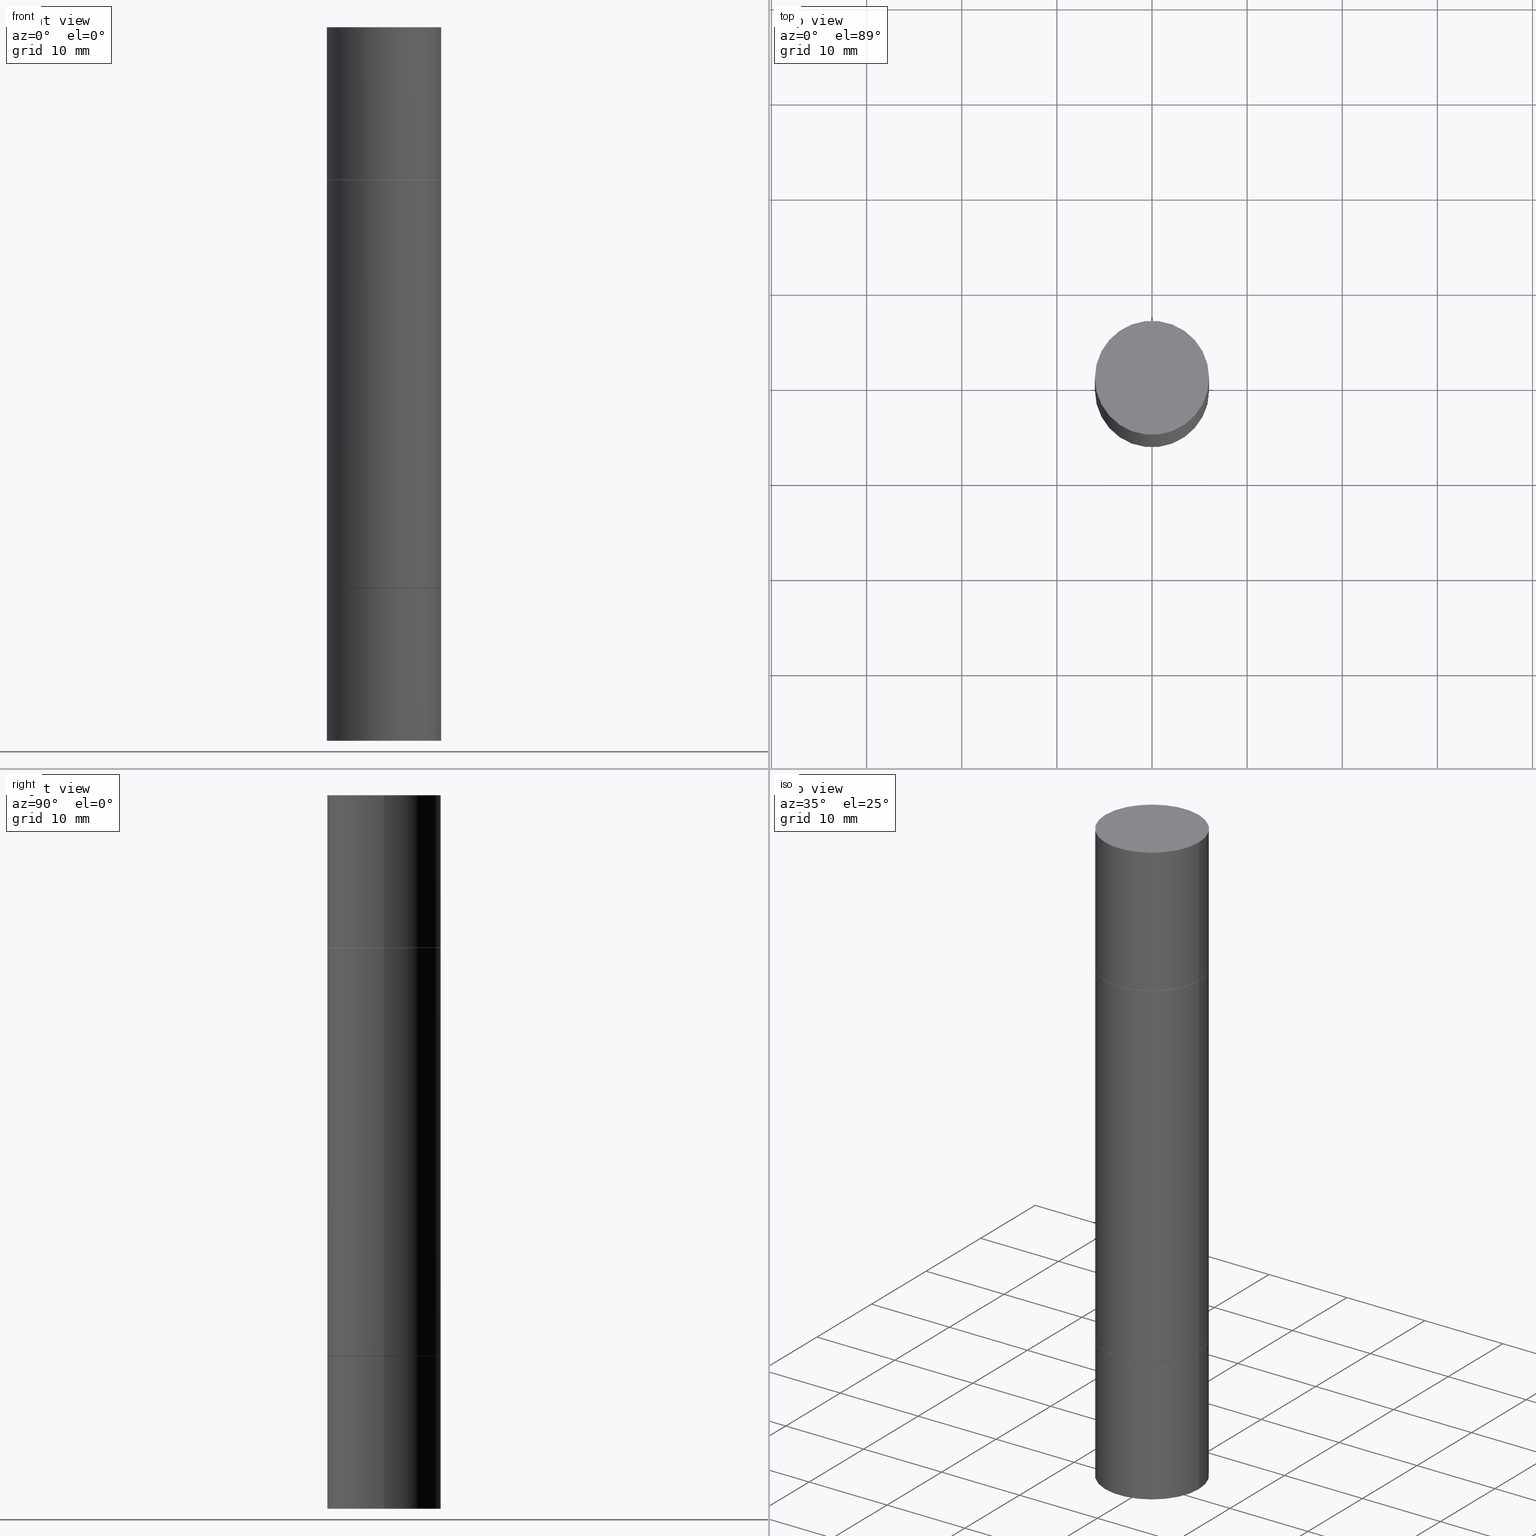
[diagram: canonical four-view strip — front | top / right | iso, engineering-drawing reading convention]
A machine part, canonical four-view strip (front | top / right | iso — engineering-drawing reading convention). The complete STEP part file that produces these views, byte-faithful:
ISO-10303-21;
HEADER;
FILE_DESCRIPTION (( 'STEP AP203' ),
    '1' );
FILE_NAME ('48941.STEP',
    '2024-03-04T15:50:07',
    ( '' ),
    ( '' ),
    'SwSTEP 2.0',
    'SolidWorks 2023',
    '' );
FILE_SCHEMA (( 'CONFIG_CONTROL_DESIGN' ));
ENDSEC;

DATA;
#1 = ORIENTED_EDGE ( 'NONE', *, *, #467, .F. ) ;
#2 = AXIS2_PLACEMENT_3D ( 'NONE', #67, #650, #25 ) ;
#3 = CIRCLE ( 'NONE', #44, 0.2361999999999999933 ) ;
#4 = DATE_AND_TIME ( #521, #623 ) ;
#5 = CARTESIAN_POINT ( 'NONE',  ( 0.000000000000000000, -1.031172645228302408E-14, -2.952799999999998981 ) ) ;
#6 = VERTEX_POINT ( 'NONE', #495 ) ;
#7 = APPLICATION_PROTOCOL_DEFINITION ( 'international standard', 'config_control_design', 1994, #184 ) ;
#8 = DIRECTION ( 'NONE',  ( 1.000000000000000000, -6.982962677686265133E-15, 0.000000000000000000 ) ) ;
#9 = CARTESIAN_POINT ( 'NONE',  ( 0.000000000000000000, -1.031172645228302408E-14, -2.952799999999998981 ) ) ;
#10 = AXIS2_PLACEMENT_3D ( 'NONE', #135, #549, #554 ) ;
#11 = DATE_AND_TIME ( #259, #645 ) ;
#12 = DIRECTION ( 'NONE',  ( 1.000000000000000000, -6.982962677686265922E-15, 4.876176775795935793E-29 ) ) ;
#13 = EDGE_CURVE ( 'NONE', #327, #29, #562, .T. ) ;
#14 = EDGE_CURVE ( 'NONE', #663, #100, #432, .T. ) ;
#15 = LINE ( 'NONE', #216, #384 ) ;
#16 = FACE_OUTER_BOUND ( 'NONE', #257, .T. ) ;
#17 = DIRECTION ( 'NONE',  ( 2.438088387897959769E-29, 3.492890411551753071E-15, 1.000000000000000000 ) ) ;
#18 = CARTESIAN_POINT ( 'NONE',  ( -0.2361999999999999933, -8.691276825209387423E-15, -2.952799999999998981 ) ) ;
#19 = DIRECTION ( 'NONE',  ( 2.445468806185136597E-29, 3.492890411551752677E-15, 1.000000000000000000 ) ) ;
#20 = CC_DESIGN_APPROVAL ( #672, ( #71 ) ) ;
#21 = LOCAL_TIME ( 10, 50, 7.000000000000000000, #635 ) ;
#22 = DIRECTION ( 'NONE',  ( 1.000000000000000000, -6.982962677686265922E-15, 9.839502134516470631E-33 ) ) ;
#23 = FACE_OUTER_BOUND ( 'NONE', #461, .T. ) ;
#24 = ADVANCED_FACE ( 'NONE', ( #392 ), #435, .T. ) ;
#25 = DIRECTION ( 'NONE',  ( 1.000000000000000000, -6.982962677686266711E-15, 0.000000000000000000 ) ) ;
#26 = VERTEX_POINT ( 'NONE', #179 ) ;
#27 = CARTESIAN_POINT ( 'NONE',  ( 0.000000000000000000, 0.000000000000000000, 0.000000000000000000 ) ) ;
#28 = ORIENTED_EDGE ( 'NONE', *, *, #505, .T. ) ;
#29 = VERTEX_POINT ( 'NONE', #547 ) ;
#30 = DIRECTION ( 'NONE',  ( -0.7071067811865232589, 2.381258160591016070E-15, -0.7071067811865715536 ) ) ;
#31 = AXIS2_PLACEMENT_3D ( 'NONE', #578, #59, #8 ) ;
#32 = CARTESIAN_POINT ( 'NONE',  ( 3.610490145451734531E-29, -5.154823048668018475E-15, -1.476399999999999491 ) ) ;
#33 = ORIENTED_EDGE ( 'NONE', *, *, #176, .F. ) ;
#34 = EDGE_CURVE ( 'NONE', #26, #337, #43, .T. ) ;
#35 = CARTESIAN_POINT ( 'NONE',  ( -0.2351999999999999924, -6.439165487490986171E-15, -2.322899999999999743 ) ) ;
#36 = FACE_OUTER_BOUND ( 'NONE', #390, .T. ) ;
#37 = ORIENTED_EDGE ( 'NONE', *, *, #81, .F. ) ;
#38 = MECHANICAL_CONTEXT ( 'NONE', #367, 'mechanical' ) ;
#39 = DIRECTION ( 'NONE',  ( 1.000000000000000000, -6.982962677686266711E-15, 0.000000000000000000 ) ) ;
#40 = ORIENTED_EDGE ( 'NONE', *, *, #328, .T. ) ;
#41 =( LENGTH_UNIT ( ) NAMED_UNIT ( * ) SI_UNIT ( $, .METRE. ) );
#42 = DIRECTION ( 'NONE',  ( -1.000000000000000000, 6.982962677686265922E-15, -4.876176775795935793E-29 ) ) ;
#43 = CIRCLE ( 'NONE', #530, 0.2361999999999999933 ) ;
#44 = AXIS2_PLACEMENT_3D ( 'NONE', #326, #529, #481 ) ;
#45 = ORIENTED_EDGE ( 'NONE', *, *, #266, .F. ) ;
#46 = DIRECTION ( 'NONE',  ( -2.445468806185136877E-29, -3.492890411551753071E-15, -1.000000000000000000 ) ) ;
#47 = ADVANCED_FACE ( 'NONE', ( #537 ), #293, .T. ) ;
#48 = ORIENTED_EDGE ( 'NONE', *, *, #501, .T. ) ;
#49 = DIRECTION ( 'NONE',  ( -2.445468806185136597E-29, -3.492890411551752677E-15, -1.000000000000000000 ) ) ;
#50 = EDGE_LOOP ( 'NONE', ( #507, #162, #611, #669 ) ) ;
#51 = PERSON_AND_ORGANIZATION_ROLE ( 'creator' ) ;
#52 = CARTESIAN_POINT ( 'NONE',  ( 5.680579489887452821E-29, -2.198091315289460230E-15, -0.6298999999999994603 ) ) ;
#53 = ORIENTED_EDGE ( 'NONE', *, *, #648, .F. ) ;
#54 = CIRCLE ( 'NONE', #622, 0.2351999999999999924 ) ;
#55 = ADVANCED_FACE ( 'NONE', ( #442 ), #220, .T. ) ;
#56 = SHAPE_DEFINITION_REPRESENTATION ( #92, #203 ) ;
#57 = LINE ( 'NONE', #638, #468 ) ;
#58 = CALENDAR_DATE ( 2024, 4, 3 ) ;
#59 = DIRECTION ( 'NONE',  ( -2.445468806185136597E-29, -3.492890411551752677E-15, -1.000000000000000000 ) ) ;
#60 = CALENDAR_DATE ( 2024, 4, 3 ) ;
#61 = DIRECTION ( 'NONE',  ( 1.000000000000000000, -6.982962677686265133E-15, 0.000000000000000000 ) ) ;
#62 = CONICAL_SURFACE ( 'NONE', #577, 0.2351999999999999924, 0.7853981633974141952 ) ;
#63 = CARTESIAN_POINT ( 'NONE',  ( 0.000000000000000000, -1.031172645228302408E-14, -2.952799999999998981 ) ) ;
#64 = EDGE_LOOP ( 'NONE', ( #76, #583, #294, #83 ) ) ;
#65 = ADVANCED_FACE ( 'NONE', ( #16 ), #492, .F. ) ;
#66 = DIRECTION ( 'NONE',  ( 1.000000000000000000, -6.982962677686266711E-15, 0.000000000000000000 ) ) ;
#67 = CARTESIAN_POINT ( 'NONE',  ( 7.220980290903470182E-29, 2.080354946989631982E-18, 5.463695987328526437E-16 ) ) ;
#68 = DIRECTION ( 'NONE',  ( -2.445468806185136877E-29, -3.492890411551753071E-15, -1.000000000000000000 ) ) ;
#69 = CARTESIAN_POINT ( 'NONE',  ( 0.000000000000000000, -1.031172645228302408E-14, -2.952799999999998981 ) ) ;
#70 = AXIS2_PLACEMENT_3D ( 'NONE', #478, #271, #426 ) ;
#71 = PRODUCT_DEFINITION ( 'UNKNOWN', '', #284, #660 ) ;
#72 = FACE_OUTER_BOUND ( 'NONE', #414, .T. ) ;
#73 = CARTESIAN_POINT ( 'NONE',  ( 7.220980290903470182E-29, -1.030964609733603853E-14, -2.952799999999999869 ) ) ;
#74 = EDGE_LOOP ( 'NONE', ( #423, #45, #152, #316 ) ) ;
#75 = DIRECTION ( 'NONE',  ( 2.445468806185136597E-29, 3.492890411551752677E-15, 1.000000000000000000 ) ) ;
#76 = ORIENTED_EDGE ( 'NONE', *, *, #608, .T. ) ;
#77 = EDGE_CURVE ( 'NONE', #344, #558, #249, .T. ) ;
#78 = ORIENTED_EDGE ( 'NONE', *, *, #14, .T. ) ;
#79 = LINE ( 'NONE', #195, #136 ) ;
#80 = DIRECTION ( 'NONE',  ( -2.445468806185136597E-29, -3.492890411551752677E-15, -1.000000000000000000 ) ) ;
#81 = EDGE_CURVE ( 'NONE', #6, #630, #164, .T. ) ;
#82 = EDGE_CURVE ( 'NONE', #231, #137, #551, .T. ) ;
#83 = ORIENTED_EDGE ( 'NONE', *, *, #599, .F. ) ;
#84 = AXIS2_PLACEMENT_3D ( 'NONE', #463, #679, #156 ) ;
#85 = CARTESIAN_POINT ( 'NONE',  ( 0.2361999999999998545, -5.327579411654007610E-15, -1.476399999999999491 ) ) ;
#86 = AXIS2_PLACEMENT_3D ( 'NONE', #456, #459, #248 ) ;
#87 = ORIENTED_EDGE ( 'NONE', *, *, #505, .F. ) ;
#88 = ORIENTED_EDGE ( 'NONE', *, *, #528, .T. ) ;
#89 = EDGE_CURVE ( 'NONE', #358, #6, #205, .T. ) ;
#90 = CARTESIAN_POINT ( 'NONE',  ( 0.2361999999999999933, -9.759737786468237294E-15, -2.322899999999999743 ) ) ;
#91 = CARTESIAN_POINT ( 'NONE',  ( -0.2351999999999999924, -5.828183824204861414E-16, -0.6298999999999994603 ) ) ;
#92 = PRODUCT_DEFINITION_SHAPE ( 'NONE', 'NONE',  #71 ) ;
#93 = ORIENTED_EDGE ( 'NONE', *, *, #677, .F. ) ;
#94 = DIRECTION ( 'NONE',  ( 1.000000000000000000, -6.982962677686269077E-15, 0.000000000000000000 ) ) ;
#95 = EDGE_CURVE ( 'NONE', #548, #310, #173, .T. ) ;
#96 = DIRECTION ( 'NONE',  ( -2.445468806185136597E-29, 3.491481338843145583E-15, 1.000000000000000000 ) ) ;
#97 = AXIS2_PLACEMENT_3D ( 'NONE', #519, #370, #207 ) ;
#98 = ORIENTED_EDGE ( 'NONE', *, *, #535, .F. ) ;
#99 = DIRECTION ( 'NONE',  ( -0.000000000000000000, -3.492185875197449130E-15, -1.000000000000000000 ) ) ;
#100 = VERTEX_POINT ( 'NONE', #129 ) ;
#101 = PERSON_AND_ORGANIZATION ( #602, #610 ) ;
#102 = DIRECTION ( 'NONE',  ( 2.438088387897959769E-29, 3.492890411551753071E-15, 1.000000000000000000 ) ) ;
#103 = EDGE_CURVE ( 'NONE', #663, #561, #634, .T. ) ;
#104 = VERTEX_POINT ( 'NONE', #504 ) ;
#105 = PERSON_AND_ORGANIZATION ( #602, #610 ) ;
#106 = DIRECTION ( 'NONE',  ( -2.445468806185136597E-29, 3.491481338843145583E-15, 1.000000000000000000 ) ) ;
#107 = CIRCLE ( 'NONE', #282, 0.2351999999999999924 ) ;
#108 = AXIS2_PLACEMENT_3D ( 'NONE', #430, #106, #161 ) ;
#109 = LOCAL_TIME ( 10, 50, 7.000000000000000000, #314 ) ;
#110 = CYLINDRICAL_SURFACE ( 'NONE', #666, 0.2361999999999999933 ) ;
#111 = CARTESIAN_POINT ( 'NONE',  ( 5.680579489887452821E-29, -8.110362001998742346E-15, -2.322899999999999743 ) ) ;
#112 = ADVANCED_FACE ( 'NONE', ( #499 ), #400, .T. ) ;
#113 = DIRECTION ( 'NONE',  ( 1.000000000000000000, -6.982962677686265133E-15, 0.000000000000000000 ) ) ;
#114 = EDGE_CURVE ( 'NONE', #439, #440, #671, .T. ) ;
#115 = ORIENTED_EDGE ( 'NONE', *, *, #13, .F. ) ;
#116 = VECTOR ( 'NONE', #557, 39.37007874015748854 ) ;
#117 = AXIS2_PLACEMENT_3D ( 'NONE', #228, #17, #118 ) ;
#118 = DIRECTION ( 'NONE',  ( -1.000000000000000000, 6.982962677686265922E-15, -9.839502134516470631E-33 ) ) ;
#119 = DIRECTION ( 'NONE',  ( -2.445468806185136597E-29, 3.491481338843145583E-15, 1.000000000000000000 ) ) ;
#120 = DIRECTION ( 'NONE',  ( 1.000000000000000000, -6.982962677686266711E-15, 4.876176775795936353E-29 ) ) ;
#121 = DIRECTION ( 'NONE',  ( 1.000000000000000000, -6.982962677686269077E-15, 0.000000000000000000 ) ) ;
#122 = DIRECTION ( 'NONE',  ( 1.000000000000000000, -6.982962677686266711E-15, 0.000000000000000000 ) ) ;
#123 = CARTESIAN_POINT ( 'NONE',  ( -0.2361999999999999933, -8.691276825209387423E-15, -2.952799999999998981 ) ) ;
#124 = ORIENTED_EDGE ( 'NONE', *, *, #201, .T. ) ;
#125 = AXIS2_PLACEMENT_3D ( 'NONE', #592, #397, #22 ) ;
#126 = CARTESIAN_POINT ( 'NONE',  ( -0.2361999999999999933, -5.811345786273763077E-16, -0.6308999999999995723 ) ) ;
#127 = CARTESIAN_POINT ( 'NONE',  ( 0.2351999999999999924, -3.840484137081269558E-15, -0.6298999999999994603 ) ) ;
#128 = EDGE_LOOP ( 'NONE', ( #185, #208 ) ) ;
#129 = CARTESIAN_POINT ( 'NONE',  ( -0.2361999999999999933, 5.224441469024009929E-16, -0.6298999999999994603 ) ) ;
#130 = ORIENTED_EDGE ( 'NONE', *, *, #114, .T. ) ;
#131 = DIRECTION ( 'NONE',  ( -2.445468806185136597E-29, -3.492890411551752677E-15, -1.000000000000000000 ) ) ;
#132 = ORIENTED_EDGE ( 'NONE', *, *, #151, .F. ) ;
#133 = APPLICATION_PROTOCOL_DEFINITION ( 'international standard', 'config_control_design', 1994, #367 ) ;
#134 = AXIS2_PLACEMENT_3D ( 'NONE', #251, #452, #253 ) ;
#135 = CARTESIAN_POINT ( 'NONE',  ( 5.678134021081268339E-29, -2.201584205701010795E-15, -0.6308999999999995723 ) ) ;
#136 = VECTOR ( 'NONE', #503, 39.37007874015748143 ) ;
#137 = VERTEX_POINT ( 'NONE', #617 ) ;
#138 = DIRECTION ( 'NONE',  ( 1.000000000000000000, -6.982962677686265133E-15, 0.000000000000000000 ) ) ;
#139 = DIRECTION ( 'NONE',  ( 1.000000000000000000, -6.982962677686268288E-15, 0.000000000000000000 ) ) ;
#140 = ORIENTED_EDGE ( 'NONE', *, *, #465, .F. ) ;
#141 = EDGE_CURVE ( 'NONE', #510, #652, #654, .T. ) ;
#142 =( NAMED_UNIT ( * ) PLANE_ANGLE_UNIT ( ) SI_UNIT ( $, .RADIAN. ) );
#143 = CARTESIAN_POINT ( 'NONE',  ( 7.220980290903470182E-29, 2.080354946989631982E-18, 5.463695987328526437E-16 ) ) ;
#144 = ORIENTED_EDGE ( 'NONE', *, *, #289, .T. ) ;
#145 = DIRECTION ( 'NONE',  ( -2.445468806185136877E-29, -3.492890411551753071E-15, -1.000000000000000000 ) ) ;
#146 = AXIS2_PLACEMENT_3D ( 'NONE', #333, #335, #596 ) ;
#147 = AXIS2_PLACEMENT_3D ( 'NONE', #594, #163, #122 ) ;
#148 = ORIENTED_EDGE ( 'NONE', *, *, #629, .T. ) ;
#149 = DIMENSIONAL_EXPONENTS ( 1.000000000000000000, 0.000000000000000000, 0.000000000000000000, 0.000000000000000000, 0.000000000000000000, 0.000000000000000000, 0.000000000000000000 ) ;
#150 = PLANE ( 'NONE',  #273 ) ;
#151 = EDGE_CURVE ( 'NONE', #174, #548, #404, .T. ) ;
#152 = ORIENTED_EDGE ( 'NONE', *, *, #476, .T. ) ;
#153 = APPROVAL_STATUS ( 'not_yet_approved' ) ;
#154 = PLANE ( 'NONE',  #97 ) ;
#155 = PERSON_AND_ORGANIZATION ( #602, #610 ) ;
#156 = DIRECTION ( 'NONE',  ( 1.000000000000000000, -6.982962677686266711E-15, 0.000000000000000000 ) ) ;
#157 = VECTOR ( 'NONE', #600, 39.37007874015748854 ) ;
#158 = AXIS2_PLACEMENT_3D ( 'NONE', #63, #168, #113 ) ;
#159 = DIRECTION ( 'NONE',  ( 2.445468806185136597E-29, 3.492890411551752677E-15, 1.000000000000000000 ) ) ;
#160 = EDGE_CURVE ( 'NONE', #561, #663, #320, .T. ) ;
#161 = DIRECTION ( 'NONE',  ( 1.000000000000000000, -6.982962677686268288E-15, 0.000000000000000000 ) ) ;
#162 = ORIENTED_EDGE ( 'NONE', *, *, #535, .T. ) ;
#163 = DIRECTION ( 'NONE',  ( 2.445468806185136597E-29, 3.492890411551752677E-15, 1.000000000000000000 ) ) ;
#164 = LINE ( 'NONE', #123, #383 ) ;
#165 = AXIS2_PLACEMENT_3D ( 'NONE', #69, #80, #290 ) ;
#166 = VECTOR ( 'NONE', #30, 39.37007874015748854 ) ;
#167 = APPROVAL_PERSON_ORGANIZATION ( #372, #633, #518 ) ;
#168 = DIRECTION ( 'NONE',  ( -2.445468806185136597E-29, -3.492890411551752677E-15, -1.000000000000000000 ) ) ;
#169 = ORIENTED_EDGE ( 'NONE', *, *, #34, .T. ) ;
#170 = LINE ( 'NONE', #332, #586 ) ;
#171 = CARTESIAN_POINT ( 'NONE',  ( 1.649375784469568312E-15, 0.2361999999999896960, -2.952800000000000757 ) ) ;
#172 = CARTESIAN_POINT ( 'NONE',  ( 0.2361999999999999933, -1.647295429522506636E-15, 5.463695987328526437E-16 ) ) ;
#173 = LINE ( 'NONE', #127, #157 ) ;
#174 = VERTEX_POINT ( 'NONE', #91 ) ;
#175 = EDGE_CURVE ( 'NONE', #358, #482, #408, .T. ) ;
#176 = EDGE_CURVE ( 'NONE', #482, #630, #585, .T. ) ;
#177 = AXIS2_PLACEMENT_3D ( 'NONE', #143, #675, #603 ) ;
#178 = DIRECTION ( 'NONE',  ( -2.445468806185136877E-29, -3.492890411551753071E-15, -1.000000000000000000 ) ) ;
#179 = CARTESIAN_POINT ( 'NONE',  ( -0.2361999999999999933, -7.531702107802033254E-15, -2.952799999999999869 ) ) ;
#180 = ORIENTED_EDGE ( 'NONE', *, *, #82, .T. ) ;
#181 = ADVANCED_FACE ( 'NONE', ( #183 ), #303, .F. ) ;
#182 = DIRECTION ( 'NONE',  ( 1.000000000000000000, -6.982962677686266711E-15, 4.876176775795936353E-29 ) ) ;
#183 = FACE_OUTER_BOUND ( 'NONE', #449, .T. ) ;
#184 = APPLICATION_CONTEXT ( 'configuration controlled 3d designs of mechanical parts and assemblies' ) ;
#185 = ORIENTED_EDGE ( 'NONE', *, *, #89, .T. ) ;
#186 = DIRECTION ( 'NONE',  ( -2.445468806185136597E-29, 3.491481338843145583E-15, 1.000000000000000000 ) ) ;
#187 = EDGE_LOOP ( 'NONE', ( #33, #140 ) ) ;
#188 = CARTESIAN_POINT ( 'NONE',  ( 5.680579489887452821E-29, -8.110362001998742346E-15, -2.322899999999999743 ) ) ;
#189 = CONICAL_SURFACE ( 'NONE', #347, 0.2351999999999999924, 0.7853981633974141952 ) ;
#190 = AXIS2_PLACEMENT_3D ( 'NONE', #494, #589, #436 ) ;
#191 = DIRECTION ( 'NONE',  ( 1.000000000000000000, -6.982962677686269077E-15, 0.000000000000000000 ) ) ;
#192 = CC_DESIGN_PERSON_AND_ORGANIZATION_ASSIGNMENT ( #472, #462, ( #71 ) ) ;
#193 = CLOSED_SHELL ( 'NONE', ( #258, #112, #24, #65, #429, #202, #580, #371 ) ) ;
#194 = ORIENTED_EDGE ( 'NONE', *, *, #269, .F. ) ;
#195 = CARTESIAN_POINT ( 'NONE',  ( 0.2361999999999999933, -1.649375784469496131E-15, 1.151752954443000088E-29 ) ) ;
#196 = CARTESIAN_POINT ( 'NONE',  ( -0.2351999999999999924, -5.845021862135959750E-16, -0.6298999999999994603 ) ) ;
#197 = ORIENTED_EDGE ( 'NONE', *, *, #95, .F. ) ;
#198 = DIRECTION ( 'NONE',  ( -2.445468806185136597E-29, 3.491481338843145583E-15, 1.000000000000000000 ) ) ;
#199 = CARTESIAN_POINT ( 'NONE',  ( 0.2361999999999998545, -1.196110223675252060E-14, -2.952799999999998981 ) ) ;
#200 = ORIENTED_EDGE ( 'NONE', *, *, #176, .T. ) ;
#201 = EDGE_CURVE ( 'NONE', #341, #231, #448, .T. ) ;
#202 = ADVANCED_FACE ( 'NONE', ( #665 ), #513, .T. ) ;
#203 = ADVANCED_BREP_SHAPE_REPRESENTATION ( '48941', ( #218, #455, #680, #227, #226, #349 ), #262 ) ;
#204 = FACE_OUTER_BOUND ( 'NONE', #241, .T. ) ;
#205 = CIRCLE ( 'NONE', #2, 0.2361999999999999933 ) ;
#206 = ORIENTED_EDGE ( 'NONE', *, *, #77, .T. ) ;
#207 = DIRECTION ( 'NONE',  ( -1.000000000000000000, 6.982962677686265922E-15, -9.839502134516470631E-33 ) ) ;
#208 = ORIENTED_EDGE ( 'NONE', *, *, #361, .T. ) ;
#209 = COORDINATED_UNIVERSAL_TIME_OFFSET ( 5, 0, .BEHIND. ) ;
#210 = DIRECTION ( 'NONE',  ( -2.445468806185136597E-29, -3.492890411551752677E-15, -1.000000000000000000 ) ) ;
#211 = CC_DESIGN_PERSON_AND_ORGANIZATION_ASSIGNMENT ( #270, #631, ( #451 ) ) ;
#212 = CARTESIAN_POINT ( 'NONE',  ( 0.2361999999999999933, -3.850959990170508109E-15, -0.6308999999999995723 ) ) ;
#213 = AXIS2_PLACEMENT_3D ( 'NONE', #403, #186, #659 ) ;
#214 = AXIS2_PLACEMENT_3D ( 'NONE', #491, #19, #232 ) ;
#215 = CARTESIAN_POINT ( 'NONE',  ( 0.2361999999999999933, -1.647295429522506636E-15, 5.463695987328526437E-16 ) ) ;
#216 = CARTESIAN_POINT ( 'NONE',  ( -0.2361999999999998545, -8.691276825209390578E-15, -2.952799999999998981 ) ) ;
#217 = DIRECTION ( 'NONE',  ( -2.445468806185136877E-29, -3.492890411551753071E-15, -1.000000000000000000 ) ) ;
#218 = MANIFOLD_SOLID_BREP ( 'Body-Move/Copy2[1]', #490 ) ;
#219 = CARTESIAN_POINT ( 'NONE',  ( 5.680579489887452821E-29, -2.198091315289460230E-15, -0.6298999999999994603 ) ) ;
#220 = PLANE ( 'NONE',  #393 ) ;
#221 = AXIS2_PLACEMENT_3D ( 'NONE', #229, #331, #281 ) ;
#222 = AXIS2_PLACEMENT_3D ( 'NONE', #674, #556, #182 ) ;
#223 = APPROVAL_PERSON_ORGANIZATION ( #101, #245, #264 ) ;
#224 = PLANE ( 'NONE',  #190 ) ;
#225 = VERTEX_POINT ( 'NONE', #357 ) ;
#226 = MANIFOLD_SOLID_BREP ( 'Combine1', #193 ) ;
#227 = MANIFOLD_SOLID_BREP ( 'Mirror1[4]', #350 ) ;
#228 = CARTESIAN_POINT ( 'NONE',  ( 1.649375784469568312E-15, 0.2361999999999999933, 0.000000000000000000 ) ) ;
#229 = CARTESIAN_POINT ( 'NONE',  ( 5.680579489887452821E-29, -8.110362001998742346E-15, -2.322899999999999743 ) ) ;
#230 = EDGE_CURVE ( 'NONE', #440, #341, #607, .T. ) ;
#231 = VERTEX_POINT ( 'NONE', #85 ) ;
#232 = DIRECTION ( 'NONE',  ( 1.000000000000000000, -6.982962677686266711E-15, 0.000000000000000000 ) ) ;
#233 = CARTESIAN_POINT ( 'NONE',  ( 5.678134021081268339E-29, -8.106870520659897761E-15, -2.321899999999999409 ) ) ;
#234 = ADVANCED_FACE ( 'NONE', ( #36 ), #506, .F. ) ;
#235 = ORIENTED_EDGE ( 'NONE', *, *, #230, .T. ) ;
#236 = AXIS2_PLACEMENT_3D ( 'NONE', #509, #450, #42 ) ;
#237 = DIRECTION ( 'NONE',  ( -2.445468806185136597E-29, -3.492890411551752677E-15, -1.000000000000000000 ) ) ;
#238 = VECTOR ( 'NONE', #68, 39.37007874015748143 ) ;
#239 = CARTESIAN_POINT ( 'NONE',  ( 5.680579489887452821E-29, -2.198091315289460230E-15, -0.6298999999999994603 ) ) ;
#240 = UNCERTAINTY_MEASURE_WITH_UNIT (LENGTH_MEASURE( 1.000000000000000082E-05 ), #342, 'distance_accuracy_value', 'NONE');
#241 = EDGE_LOOP ( 'NONE', ( #544, #552 ) ) ;
#242 = FACE_OUTER_BOUND ( 'NONE', #453, .T. ) ;
#243 = CARTESIAN_POINT ( 'NONE',  ( 5.678134021081268339E-29, -2.201584205701010795E-15, -0.6308999999999995723 ) ) ;
#244 = ORIENTED_EDGE ( 'NONE', *, *, #14, .F. ) ;
#245 = APPROVAL ( #359, 'UNSPECIFIED' ) ;
#246 = DIRECTION ( 'NONE',  ( 1.000000000000000000, -6.982962677686266711E-15, 0.000000000000000000 ) ) ;
#247 = ORIENTED_EDGE ( 'NONE', *, *, #501, .F. ) ;
#248 = DIRECTION ( 'NONE',  ( 1.000000000000000000, -6.982962677686266711E-15, 0.000000000000000000 ) ) ;
#249 = CIRCLE ( 'NONE', #221, 0.2351999999999999924 ) ;
#250 = CONICAL_SURFACE ( 'NONE', #511, 0.2351999999999999924, 0.7853981633974141952 ) ;
#251 = CARTESIAN_POINT ( 'NONE',  ( 1.649375784469552732E-15, 0.2361999999999977728, -0.6299000000000003485 ) ) ;
#252 = ORIENTED_EDGE ( 'NONE', *, *, #378, .F. ) ;
#253 = DIRECTION ( 'NONE',  ( -1.000000000000000000, 6.982962677686265922E-15, -9.839502134516470631E-33 ) ) ;
#254 = EDGE_LOOP ( 'NONE', ( #541, #395, #355, #445 ) ) ;
#255 = EDGE_CURVE ( 'NONE', #341, #440, #522, .T. ) ;
#256 = FACE_OUTER_BOUND ( 'NONE', #419, .T. ) ;
#257 = EDGE_LOOP ( 'NONE', ( #144, #398 ) ) ;
#258 = ADVANCED_FACE ( 'NONE', ( #614 ), #189, .T. ) ;
#259 = CALENDAR_DATE ( 2024, 4, 3 ) ;
#260 = DIRECTION ( 'NONE',  ( -1.000000000000000000, 6.982962677686265922E-15, -9.839502134516470631E-33 ) ) ;
#261 = AXIS2_PLACEMENT_3D ( 'NONE', #573, #421, #473 ) ;
#262 =( GEOMETRIC_REPRESENTATION_CONTEXT ( 3 ) GLOBAL_UNCERTAINTY_ASSIGNED_CONTEXT ( ( #240 ) ) GLOBAL_UNIT_ASSIGNED_CONTEXT ( ( #342, #142, #402 ) ) REPRESENTATION_CONTEXT ( 'NONE', 'WORKASPACE' ) );
#263 = EDGE_LOOP ( 'NONE', ( #132, #148, #590, #197 ) ) ;
#264 = APPROVAL_ROLE ( '' ) ;
#265 = DIRECTION ( 'NONE',  ( -2.445468806185136877E-29, 3.491481338843145188E-15, 1.000000000000000000 ) ) ;
#266 = EDGE_CURVE ( 'NONE', #225, #439, #107, .T. ) ;
#267 = DATE_TIME_ROLE ( 'classification_date' ) ;
#268 = CARTESIAN_POINT ( 'NONE',  ( 0.2361999999999999933, -3.850959990170508109E-15, -0.6308999999999995723 ) ) ;
#269 = EDGE_CURVE ( 'NONE', #137, #231, #319, .T. ) ;
#270 = PERSON_AND_ORGANIZATION ( #602, #610 ) ;
#271 = DIRECTION ( 'NONE',  ( 0.000000000000000000, 3.492185875197449524E-15, 1.000000000000000000 ) ) ;
#272 = AXIS2_PLACEMENT_3D ( 'NONE', #233, #119, #121 ) ;
#273 = AXIS2_PLACEMENT_3D ( 'NONE', #570, #102, #260 ) ;
#274 = ADVANCED_FACE ( 'NONE', ( #256 ), #470, .T. ) ;
#275 = DIRECTION ( 'NONE',  ( -2.445468806185136597E-29, -3.492890411551752677E-15, -1.000000000000000000 ) ) ;
#276 = ORIENTED_EDGE ( 'NONE', *, *, #89, .F. ) ;
#277 = ADVANCED_FACE ( 'NONE', ( #425 ), #154, .F. ) ;
#278 = LINE ( 'NONE', #649, #238 ) ;
#279 = DIRECTION ( 'NONE',  ( -2.445468806185136597E-29, 3.491481338843145583E-15, 1.000000000000000000 ) ) ;
#280 = CYLINDRICAL_SURFACE ( 'NONE', #362, 0.2361999999999999933 ) ;
#281 = DIRECTION ( 'NONE',  ( 1.000000000000000000, -6.982962677686268288E-15, 0.000000000000000000 ) ) ;
#282 = AXIS2_PLACEMENT_3D ( 'NONE', #307, #363, #566 ) ;
#283 = CIRCLE ( 'NONE', #329, 0.2361999999999999933 ) ;
#284 = PRODUCT_DEFINITION_FORMATION_WITH_SPECIFIED_SOURCE ( 'ANY', '', #451, .NOT_KNOWN. ) ;
#285 = CYLINDRICAL_SURFACE ( 'NONE', #469, 0.2361999999999998545 ) ;
#286 = DIRECTION ( 'NONE',  ( 2.438088387897960049E-29, -3.491481338843145188E-15, -1.000000000000000000 ) ) ;
#287 = ORIENTED_EDGE ( 'NONE', *, *, #34, .F. ) ;
#288 = DIRECTION ( 'NONE',  ( 0.7071067811865232589, -2.468850131082003836E-15, 0.7071067811865715536 ) ) ;
#289 = EDGE_CURVE ( 'NONE', #548, #174, #295, .T. ) ;
#290 = DIRECTION ( 'NONE',  ( 1.000000000000000000, -6.982962677686269077E-15, 0.000000000000000000 ) ) ;
#291 = ORIENTED_EDGE ( 'NONE', *, *, #175, .T. ) ;
#292 = LINE ( 'NONE', #498, #166 ) ;
#293 = CYLINDRICAL_SURFACE ( 'NONE', #165, 0.2361999999999998545 ) ;
#294 = ORIENTED_EDGE ( 'NONE', *, *, #312, .F. ) ;
#295 = CIRCLE ( 'NONE', #84, 0.2351999999999999924 ) ;
#296 = DIRECTION ( 'NONE',  ( -0.7071067811865232589, 7.493145998870265808E-15, 0.7071067811865715536 ) ) ;
#297 = AXIS2_PLACEMENT_3D ( 'NONE', #52, #49, #625 ) ;
#298 = ORIENTED_EDGE ( 'NONE', *, *, #476, .F. ) ;
#299 = CC_DESIGN_PERSON_AND_ORGANIZATION_ASSIGNMENT ( #155, #51, ( #284 ) ) ;
#300 = DIRECTION ( 'NONE',  ( 1.000000000000000000, -6.982962677686268288E-15, 0.000000000000000000 ) ) ;
#301 = CARTESIAN_POINT ( 'NONE',  ( 0.000000000000000000, -1.031172645228302408E-14, -2.952799999999998981 ) ) ;
#302 = CARTESIAN_POINT ( 'NONE',  ( -0.2361999999999999933, 5.224441469024009929E-16, 5.463695987328566866E-16 ) ) ;
#303 = PLANE ( 'NONE',  #236 ) ;
#304 = ORIENTED_EDGE ( 'NONE', *, *, #309, .F. ) ;
#305 = FACE_OUTER_BOUND ( 'NONE', #368, .T. ) ;
#306 = CONICAL_SURFACE ( 'NONE', #417, 0.2351999999999999924, 0.7853981633974141952 ) ;
#307 = CARTESIAN_POINT ( 'NONE',  ( 5.680579489887452821E-29, -2.198091315289460230E-15, -0.6298999999999994603 ) ) ;
#308 = CC_DESIGN_SECURITY_CLASSIFICATION ( #668, ( #284 ) ) ;
#309 = EDGE_CURVE ( 'NONE', #26, #510, #57, .T. ) ;
#310 = VERTEX_POINT ( 'NONE', #268 ) ;
#311 = PLANE ( 'NONE',  #70 ) ;
#312 = EDGE_CURVE ( 'NONE', #652, #510, #595, .T. ) ;
#313 = ORIENTED_EDGE ( 'NONE', *, *, #378, .T. ) ;
#314 = COORDINATED_UNIVERSAL_TIME_OFFSET ( 5, 0, .BEHIND. ) ;
#315 = FACE_OUTER_BOUND ( 'NONE', #340, .T. ) ;
#316 = ORIENTED_EDGE ( 'NONE', *, *, #255, .T. ) ;
#317 = DATE_AND_TIME ( #60, #21 ) ;
#318 = DIRECTION ( 'NONE',  ( 0.000000000000000000, 1.000000000000000000, -3.469747663417779369E-15 ) ) ;
#319 = CIRCLE ( 'NONE', #427, 0.2361999999999998545 ) ;
#320 = CIRCLE ( 'NONE', #177, 0.2361999999999999933 ) ;
#321 = APPROVAL_PERSON_ORGANIZATION ( #365, #672, #415 ) ;
#322 = ADVANCED_FACE ( 'NONE', ( #418 ), #110, .T. ) ;
#323 = CARTESIAN_POINT ( 'NONE',  ( 0.2361999999999998545, -1.196110223675252060E-14, -2.952799999999998981 ) ) ;
#324 = SECURITY_CLASSIFICATION_LEVEL ( 'unclassified' ) ;
#325 = FACE_OUTER_BOUND ( 'NONE', #618, .T. ) ;
#326 = CARTESIAN_POINT ( 'NONE',  ( 5.680579489887452821E-29, -2.198091315289460230E-15, -0.6298999999999994603 ) ) ;
#327 = VERTEX_POINT ( 'NONE', #373 ) ;
#328 = EDGE_CURVE ( 'NONE', #310, #29, #515, .T. ) ;
#329 = AXIS2_PLACEMENT_3D ( 'NONE', #411, #658, #138 ) ;
#330 = DIRECTION ( 'NONE',  ( 1.000000000000000000, -6.982962677686266711E-15, 0.000000000000000000 ) ) ;
#331 = DIRECTION ( 'NONE',  ( -2.445468806185136597E-29, 3.491481338843145583E-15, 1.000000000000000000 ) ) ;
#332 = CARTESIAN_POINT ( 'NONE',  ( 0.2351999999999999924, -3.840484137081269558E-15, -0.6298999999999994603 ) ) ;
#333 = CARTESIAN_POINT ( 'NONE',  ( 5.680579489887452821E-29, -2.198091315289460230E-15, -0.6298999999999994603 ) ) ;
#334 = CARTESIAN_POINT ( 'NONE',  ( 0.2361999999999999933, -1.196110223675252060E-14, -2.952799999999998981 ) ) ;
#335 = DIRECTION ( 'NONE',  ( -2.445468806185136597E-29, -3.492890411551752677E-15, -1.000000000000000000 ) ) ;
#336 = AXIS2_PLACEMENT_3D ( 'NONE', #243, #560, #246 ) ;
#337 = VERTEX_POINT ( 'NONE', #526 ) ;
#338 = ADVANCED_FACE ( 'NONE', ( #325 ), #582, .T. ) ;
#339 = FACE_OUTER_BOUND ( 'NONE', #64, .T. ) ;
#340 = EDGE_LOOP ( 'NONE', ( #180, #410 ) ) ;
#341 = VERTEX_POINT ( 'NONE', #212 ) ;
#342 =( CONVERSION_BASED_UNIT ( 'INCH', #356 ) LENGTH_UNIT ( ) NAMED_UNIT ( #149 ) );
#343 = CARTESIAN_POINT ( 'NONE',  ( 7.220980290903470182E-29, 2.080354946989631982E-18, 5.463695987328526437E-16 ) ) ;
#344 = VERTEX_POINT ( 'NONE', #524 ) ;
#345 = DIRECTION ( 'NONE',  ( 1.000000000000000000, -6.982962677686269077E-15, 0.000000000000000000 ) ) ;
#346 = ADVANCED_FACE ( 'NONE', ( #315 ), #311, .F. ) ;
#347 = AXIS2_PLACEMENT_3D ( 'NONE', #662, #96, #139 ) ;
#348 = DIRECTION ( 'NONE',  ( 0.000000000000000000, 0.000000000000000000, 1.000000000000000000 ) ) ;
#349 = AXIS2_PLACEMENT_3D ( 'NONE', #605, #348, #553 ) ;
#350 = CLOSED_SHELL ( 'NONE', ( #517, #389, #234, #322 ) ) ;
#351 = DIRECTION ( 'NONE',  ( 1.000000000000000000, -6.982962677686266711E-15, 0.000000000000000000 ) ) ;
#352 = EDGE_LOOP ( 'NONE', ( #244, #676, #48, #88 ) ) ;
#353 = DIRECTION ( 'NONE',  ( -2.445468806185136597E-29, 3.491481338843145583E-15, 1.000000000000000000 ) ) ;
#354 = CARTESIAN_POINT ( 'NONE',  ( 5.680579489887452821E-29, -2.198091315289460230E-15, -0.6298999999999994603 ) ) ;
#355 = ORIENTED_EDGE ( 'NONE', *, *, #95, .T. ) ;
#356 = LENGTH_MEASURE_WITH_UNIT ( LENGTH_MEASURE( 0.02539999999999999897 ), #41 );
#357 = CARTESIAN_POINT ( 'NONE',  ( 0.2351999999999999924, -3.840484137081269558E-15, -0.6298999999999994603 ) ) ;
#358 = VERTEX_POINT ( 'NONE', #215 ) ;
#359 = APPROVAL_STATUS ( 'not_yet_approved' ) ;
#360 = VECTOR ( 'NONE', #46, 39.37007874015748143 ) ;
#361 = EDGE_CURVE ( 'NONE', #6, #358, #563, .T. ) ;
#362 = AXIS2_PLACEMENT_3D ( 'NONE', #27, #486, #120 ) ;
#363 = DIRECTION ( 'NONE',  ( 2.445468806185136597E-29, 3.492890411551752677E-15, 1.000000000000000000 ) ) ;
#364 = ORIENTED_EDGE ( 'NONE', *, *, #399, .T. ) ;
#365 = PERSON_AND_ORGANIZATION ( #602, #610 ) ;
#366 = FACE_OUTER_BOUND ( 'NONE', #386, .T. ) ;
#367 = APPLICATION_CONTEXT ( 'configuration controlled 3d designs of mechanical parts and assemblies' ) ;
#368 = EDGE_LOOP ( 'NONE', ( #87, #130, #235, #298 ) ) ;
#369 = DATE_TIME_ROLE ( 'creation_date' ) ;
#370 = DIRECTION ( 'NONE',  ( 2.438088387897959769E-29, 3.492890411551753071E-15, 1.000000000000000000 ) ) ;
#371 = ADVANCED_FACE ( 'NONE', ( #366 ), #581, .F. ) ;
#372 = PERSON_AND_ORGANIZATION ( #602, #610 ) ;
#373 = CARTESIAN_POINT ( 'NONE',  ( -0.2362000000000000210, -3.534373421594380241E-15, -2.321899999999999409 ) ) ;
#374 = VECTOR ( 'NONE', #178, 39.37007874015748143 ) ;
#375 = COORDINATED_UNIVERSAL_TIME_OFFSET ( 5, 0, .BEHIND. ) ;
#376 = DIRECTION ( 'NONE',  ( 1.000000000000000000, -6.982962677686266711E-15, 0.000000000000000000 ) ) ;
#377 = FACE_OUTER_BOUND ( 'NONE', #74, .T. ) ;
#378 = EDGE_CURVE ( 'NONE', #558, #344, #407, .T. ) ;
#379 = ORIENTED_EDGE ( 'NONE', *, *, #467, .T. ) ;
#380 = DIRECTION ( 'NONE',  ( 0.7071067811865232589, -7.407546758114160193E-15, -0.7071067811865715536 ) ) ;
#381 = ADVANCED_FACE ( 'NONE', ( #377 ), #523, .T. ) ;
#382 = CARTESIAN_POINT ( 'NONE',  ( 3.610490145451734531E-29, -5.154823048668018475E-15, -1.476399999999999491 ) ) ;
#383 = VECTOR ( 'NONE', #217, 39.37007874015748143 ) ;
#384 = VECTOR ( 'NONE', #640, 39.37007874015748143 ) ;
#385 = CARTESIAN_POINT ( 'NONE',  ( 0.2351999999999999924, -9.752754823790552857E-15, -2.322899999999999743 ) ) ;
#386 = EDGE_LOOP ( 'NONE', ( #252, #571 ) ) ;
#387 = PLANE ( 'NONE',  #117 ) ;
#388 = ORIENTED_EDGE ( 'NONE', *, *, #81, .T. ) ;
#389 = ADVANCED_FACE ( 'NONE', ( #204 ), #150, .T. ) ;
#390 = EDGE_LOOP ( 'NONE', ( #464, #497 ) ) ;
#391 = FACE_OUTER_BOUND ( 'NONE', #254, .T. ) ;
#392 = FACE_OUTER_BOUND ( 'NONE', #263, .T. ) ;
#393 = AXIS2_PLACEMENT_3D ( 'NONE', #171, #286, #655 ) ;
#394 = CIRCLE ( 'NONE', #502, 0.2361999999999999933 ) ;
#395 = ORIENTED_EDGE ( 'NONE', *, *, #289, .F. ) ;
#396 = DIRECTION ( 'NONE',  ( 1.000000000000000000, -6.982962677686266711E-15, 0.000000000000000000 ) ) ;
#397 = DIRECTION ( 'NONE',  ( -2.438088387897959769E-29, -3.492890411551753071E-15, -1.000000000000000000 ) ) ;
#398 = ORIENTED_EDGE ( 'NONE', *, *, #151, .T. ) ;
#399 = EDGE_CURVE ( 'NONE', #440, #137, #278, .T. ) ;
#400 = CYLINDRICAL_SURFACE ( 'NONE', #575, 0.2361999999999998545 ) ;
#401 = ORIENTED_EDGE ( 'NONE', *, *, #546, .T. ) ;
#402 =( NAMED_UNIT ( * ) SI_UNIT ( $, .STERADIAN. ) SOLID_ANGLE_UNIT ( ) );
#403 = CARTESIAN_POINT ( 'NONE',  ( 5.680579489887452821E-29, -8.110362001998742346E-15, -2.322899999999999743 ) ) ;
#404 = CIRCLE ( 'NONE', #643, 0.2351999999999999924 ) ;
#405 = LOCAL_TIME ( 10, 50, 7.000000000000000000, #209 ) ;
#406 = LINE ( 'NONE', #35, #479 ) ;
#407 = CIRCLE ( 'NONE', #108, 0.2351999999999999924 ) ;
#408 = LINE ( 'NONE', #413, #360 ) ;
#409 = PRODUCT_RELATED_PRODUCT_CATEGORY ( 'detail', '', ( #451 ) ) ;
#410 = ORIENTED_EDGE ( 'NONE', *, *, #269, .T. ) ;
#411 = CARTESIAN_POINT ( 'NONE',  ( 7.220980290903470182E-29, -1.030964609733603853E-14, -2.952799999999999869 ) ) ;
#412 = ORIENTED_EDGE ( 'NONE', *, *, #141, .T. ) ;
#413 = CARTESIAN_POINT ( 'NONE',  ( 0.2361999999999999933, -1.196110223675252060E-14, -2.952799999999998981 ) ) ;
#414 = EDGE_LOOP ( 'NONE', ( #458, #604, #124, #194 ) ) ;
#415 = APPROVAL_ROLE ( '' ) ;
#416 = VECTOR ( 'NONE', #540, 39.37007874015748143 ) ;
#417 = AXIS2_PLACEMENT_3D ( 'NONE', #188, #353, #300 ) ;
#418 = FACE_OUTER_BOUND ( 'NONE', #352, .T. ) ;
#419 = EDGE_LOOP ( 'NONE', ( #37, #276, #291, #200 ) ) ;
#420 = DATE_AND_TIME ( #58, #109 ) ;
#421 = DIRECTION ( 'NONE',  ( -2.445468806185136597E-29, 3.491481338843145583E-15, 1.000000000000000000 ) ) ;
#422 = CC_DESIGN_DATE_AND_TIME_ASSIGNMENT ( #477, #369, ( #71 ) ) ;
#423 = ORIENTED_EDGE ( 'NONE', *, *, #114, .F. ) ;
#424 = CALENDAR_DATE ( 2024, 4, 3 ) ;
#425 = FACE_OUTER_BOUND ( 'NONE', #187, .T. ) ;
#426 = DIRECTION ( 'NONE',  ( 0.000000000000000000, 1.000000000000000000, -3.492185875197449524E-15 ) ) ;
#427 = AXIS2_PLACEMENT_3D ( 'NONE', #32, #99, #318 ) ;
#428 = CIRCLE ( 'NONE', #597, 0.2361999999999999933 ) ;
#429 = ADVANCED_FACE ( 'NONE', ( #391 ), #250, .T. ) ;
#430 = CARTESIAN_POINT ( 'NONE',  ( 5.680579489887452821E-29, -8.110362001998742346E-15, -2.322899999999999743 ) ) ;
#431 = CARTESIAN_POINT ( 'NONE',  ( 0.2351999999999999924, -9.752754823790552857E-15, -2.322899999999999743 ) ) ;
#432 = LINE ( 'NONE', #18, #416 ) ;
#433 = CARTESIAN_POINT ( 'NONE',  ( -0.2361999999999999933, -7.531702107802033254E-15, -2.322899999999999743 ) ) ;
#434 = DIRECTION ( 'NONE',  ( 1.000000000000000000, -6.982962677686266711E-15, 0.000000000000000000 ) ) ;
#435 = CONICAL_SURFACE ( 'NONE', #146, 0.2351999999999999924, 0.7853981633974141952 ) ;
#436 = DIRECTION ( 'NONE',  ( 1.000000000000000000, -6.982962677686265922E-15, 9.839502134516470631E-33 ) ) ;
#437 = ORIENTED_EDGE ( 'NONE', *, *, #175, .F. ) ;
#438 = CARTESIAN_POINT ( 'NONE',  ( 0.2351999999999999924, -3.840484137081269558E-15, -0.6298999999999994603 ) ) ;
#439 = VERTEX_POINT ( 'NONE', #483 ) ;
#440 = VERTEX_POINT ( 'NONE', #126 ) ;
#441 = CYLINDRICAL_SURFACE ( 'NONE', #158, 0.2361999999999999933 ) ;
#442 = FACE_OUTER_BOUND ( 'NONE', #615, .T. ) ;
#443 = AXIS2_PLACEMENT_3D ( 'NONE', #239, #619, #39 ) ;
#444 = CIRCLE ( 'NONE', #86, 0.2361999999999999933 ) ;
#445 = ORIENTED_EDGE ( 'NONE', *, *, #624, .T. ) ;
#446 = CC_DESIGN_PERSON_AND_ORGANIZATION_ASSIGNMENT ( #105, #564, ( #284 ) ) ;
#447 = CARTESIAN_POINT ( 'NONE',  ( 5.678134021081268339E-29, -8.106870520659897761E-15, -2.321899999999999409 ) ) ;
#448 = LINE ( 'NONE', #199, #621 ) ;
#449 = EDGE_LOOP ( 'NONE', ( #493, #412 ) ) ;
#450 = DIRECTION ( 'NONE',  ( 2.438088387897960049E-29, -3.491481338843145188E-15, -1.000000000000000000 ) ) ;
#451 = PRODUCT ( '48941', '48941', '', ( #38 ) ) ;
#452 = DIRECTION ( 'NONE',  ( 2.438088387897959769E-29, 3.492890411551753071E-15, 1.000000000000000000 ) ) ;
#453 = EDGE_LOOP ( 'NONE', ( #304, #169, #471, #534 ) ) ;
#454 = AXIS2_PLACEMENT_3D ( 'NONE', #9, #475, #61 ) ;
#455 = MANIFOLD_SOLID_BREP ( 'Mirror1[1]', #550 ) ;
#456 = CARTESIAN_POINT ( 'NONE',  ( 5.678134021081268339E-29, -2.201584205701010795E-15, -0.6308999999999995723 ) ) ;
#457 = DIRECTION ( 'NONE',  ( -2.445468806185136597E-29, -3.492890411551752677E-15, -1.000000000000000000 ) ) ;
#458 = ORIENTED_EDGE ( 'NONE', *, *, #399, .F. ) ;
#459 = DIRECTION ( 'NONE',  ( 2.445468806185136597E-29, 3.492890411551752677E-15, 1.000000000000000000 ) ) ;
#460 = DIRECTION ( 'NONE',  ( 2.445468806185136597E-29, 3.492890411551752677E-15, 1.000000000000000000 ) ) ;
#461 = EDGE_LOOP ( 'NONE', ( #532, #78, #401, #247 ) ) ;
#462 = PERSON_AND_ORGANIZATION_ROLE ( 'creator' ) ;
#463 = CARTESIAN_POINT ( 'NONE',  ( 5.680579489887452821E-29, -2.198091315289460230E-15, -0.6298999999999994603 ) ) ;
#464 = ORIENTED_EDGE ( 'NONE', *, *, #528, .F. ) ;
#465 = EDGE_CURVE ( 'NONE', #630, #482, #489, .T. ) ;
#466 = APPROVAL_DATE_TIME ( #420, #245 ) ;
#467 = EDGE_CURVE ( 'NONE', #558, #29, #533, .T. ) ;
#468 = VECTOR ( 'NONE', #265, 39.37007874015748143 ) ;
#469 = AXIS2_PLACEMENT_3D ( 'NONE', #545, #613, #94 ) ;
#470 = CYLINDRICAL_SURFACE ( 'NONE', #31, 0.2361999999999999933 ) ;
#471 = ORIENTED_EDGE ( 'NONE', *, *, #599, .T. ) ;
#472 = PERSON_AND_ORGANIZATION ( #602, #610 ) ;
#473 = DIRECTION ( 'NONE',  ( 1.000000000000000000, -6.982962677686265133E-15, 0.000000000000000000 ) ) ;
#474 = APPROVAL_DATE_TIME ( #4, #633 ) ;
#475 = DIRECTION ( 'NONE',  ( -2.445468806185136597E-29, -3.492890411551752677E-15, -1.000000000000000000 ) ) ;
#476 = EDGE_CURVE ( 'NONE', #225, #341, #170, .T. ) ;
#477 = DATE_AND_TIME ( #424, #405 ) ;
#478 = CARTESIAN_POINT ( 'NONE',  ( 0.000000000000000000, 0.000000000000000000, -1.476399999999999491 ) ) ;
#479 = VECTOR ( 'NONE', #296, 39.37007874015748854 ) ;
#480 = ADVANCED_FACE ( 'NONE', ( #339 ), #280, .T. ) ;
#481 = DIRECTION ( 'NONE',  ( 1.000000000000000000, -6.982962677686266711E-15, 0.000000000000000000 ) ) ;
#482 = VERTEX_POINT ( 'NONE', #536 ) ;
#483 = CARTESIAN_POINT ( 'NONE',  ( -0.2351999999999999924, -5.828183824204861414E-16, -0.6298999999999994603 ) ) ;
#484 = DIRECTION ( 'NONE',  ( 2.445468806185136597E-29, 3.492890411551752677E-15, 1.000000000000000000 ) ) ;
#485 = EDGE_CURVE ( 'NONE', #514, #310, #667, .T. ) ;
#486 = DIRECTION ( 'NONE',  ( -2.445468806185136597E-29, 3.491481338843145583E-15, 1.000000000000000000 ) ) ;
#487 = VECTOR ( 'NONE', #628, 39.37007874015748143 ) ;
#488 = DIRECTION ( 'NONE',  ( 0.000000000000000000, 1.000000000000000000, -3.469747663417779369E-15 ) ) ;
#489 = CIRCLE ( 'NONE', #147, 0.2361999999999999933 ) ;
#490 = CLOSED_SHELL ( 'NONE', ( #480, #55, #181, #651 ) ) ;
#491 = CARTESIAN_POINT ( 'NONE',  ( 5.678134021081268339E-29, -2.201584205701010795E-15, -0.6308999999999995723 ) ) ;
#492 = PLANE ( 'NONE',  #125 ) ;
#493 = ORIENTED_EDGE ( 'NONE', *, *, #312, .T. ) ;
#494 = CARTESIAN_POINT ( 'NONE',  ( 5.680579489887452821E-29, -2.198091315289460230E-15, -0.6298999999999994603 ) ) ;
#495 = CARTESIAN_POINT ( 'NONE',  ( -0.2361999999999999933, 5.224441469024009929E-16, 5.463695987328566866E-16 ) ) ;
#496 = ADVANCED_FACE ( 'NONE', ( #542 ), #387, .T. ) ;
#497 = ORIENTED_EDGE ( 'NONE', *, *, #546, .F. ) ;
#498 = CARTESIAN_POINT ( 'NONE',  ( -0.2351999999999999924, -5.845021862135959750E-16, -0.6298999999999994603 ) ) ;
#499 = FACE_OUTER_BOUND ( 'NONE', #50, .T. ) ;
#500 = AXIS2_PLACEMENT_3D ( 'NONE', #382, #587, #488 ) ;
#501 = EDGE_CURVE ( 'NONE', #561, #104, #653, .T. ) ;
#502 = AXIS2_PLACEMENT_3D ( 'NONE', #447, #198, #508 ) ;
#503 = DIRECTION ( 'NONE',  ( -2.445468806185136877E-29, 3.491481338843145188E-15, 1.000000000000000000 ) ) ;
#504 = CARTESIAN_POINT ( 'NONE',  ( 0.2361999999999999933, -3.847467099758956361E-15, -0.6298999999999994603 ) ) ;
#505 = EDGE_CURVE ( 'NONE', #439, #225, #54, .T. ) ;
#506 = PLANE ( 'NONE',  #134 ) ;
#507 = ORIENTED_EDGE ( 'NONE', *, *, #485, .F. ) ;
#508 = DIRECTION ( 'NONE',  ( 1.000000000000000000, -6.982962677686269077E-15, 0.000000000000000000 ) ) ;
#509 = CARTESIAN_POINT ( 'NONE',  ( 1.649375784469552732E-15, 0.2361999999999918609, -2.322900000000000631 ) ) ;
#510 = VERTEX_POINT ( 'NONE', #433 ) ;
#511 = AXIS2_PLACEMENT_3D ( 'NONE', #219, #275, #330 ) ;
#512 = CYLINDRICAL_SURFACE ( 'NONE', #222, 0.2361999999999999933 ) ;
#513 = CYLINDRICAL_SURFACE ( 'NONE', #539, 0.2361999999999998545 ) ;
#514 = VERTEX_POINT ( 'NONE', #538 ) ;
#515 = LINE ( 'NONE', #323, #487 ) ;
#516 = ORIENTED_EDGE ( 'NONE', *, *, #82, .F. ) ;
#517 = ADVANCED_FACE ( 'NONE', ( #23 ), #441, .T. ) ;
#518 = APPROVAL_ROLE ( '' ) ;
#519 = CARTESIAN_POINT ( 'NONE',  ( 1.649375784469552732E-15, 0.2361999999999977728, -0.6299000000000003485 ) ) ;
#520 = ORIENTED_EDGE ( 'NONE', *, *, #465, .T. ) ;
#521 = CALENDAR_DATE ( 2024, 4, 3 ) ;
#522 = CIRCLE ( 'NONE', #336, 0.2361999999999999933 ) ;
#523 = CONICAL_SURFACE ( 'NONE', #297, 0.2351999999999999924, 0.7853981633974141952 ) ;
#524 = CARTESIAN_POINT ( 'NONE',  ( -0.2351999999999999924, -6.433867033142764558E-15, -2.322899999999999743 ) ) ;
#525 = CC_DESIGN_PERSON_AND_ORGANIZATION_ASSIGNMENT ( #678, #627, ( #668 ) ) ;
#526 = CARTESIAN_POINT ( 'NONE',  ( 0.2361999999999999933, -1.195902188180553348E-14, -2.952799999999999869 ) ) ;
#527 = DIRECTION ( 'NONE',  ( -2.438088387897960049E-29, 3.491481338843145188E-15, 1.000000000000000000 ) ) ;
#528 = EDGE_CURVE ( 'NONE', #104, #100, #3, .T. ) ;
#529 = DIRECTION ( 'NONE',  ( 2.445468806185136597E-29, 3.492890411551752677E-15, 1.000000000000000000 ) ) ;
#530 = AXIS2_PLACEMENT_3D ( 'NONE', #73, #279, #647 ) ;
#531 = AXIS2_PLACEMENT_3D ( 'NONE', #111, #527, #12 ) ;
#532 = ORIENTED_EDGE ( 'NONE', *, *, #103, .F. ) ;
#533 = LINE ( 'NONE', #431, #656 ) ;
#534 = ORIENTED_EDGE ( 'NONE', *, *, #141, .F. ) ;
#535 = EDGE_CURVE ( 'NONE', #514, #327, #15, .T. ) ;
#536 = CARTESIAN_POINT ( 'NONE',  ( 0.2361999999999999933, -3.847467099758956361E-15, -0.6298999999999994603 ) ) ;
#537 = FACE_OUTER_BOUND ( 'NONE', #593, .T. ) ;
#538 = CARTESIAN_POINT ( 'NONE',  ( -0.2361999999999999933, -5.811345786273763077E-16, -0.6308999999999995723 ) ) ;
#539 = AXIS2_PLACEMENT_3D ( 'NONE', #301, #131, #345 ) ;
#540 = DIRECTION ( 'NONE',  ( -2.445468806185136877E-29, -3.492890411551753071E-15, -1.000000000000000000 ) ) ;
#541 = ORIENTED_EDGE ( 'NONE', *, *, #629, .F. ) ;
#542 = FACE_OUTER_BOUND ( 'NONE', #128, .T. ) ;
#543 = EDGE_LOOP ( 'NONE', ( #313, #641, #93, #1 ) ) ;
#544 = ORIENTED_EDGE ( 'NONE', *, *, #160, .T. ) ;
#545 = CARTESIAN_POINT ( 'NONE',  ( 0.000000000000000000, -1.031172645228302408E-14, -2.952799999999998981 ) ) ;
#546 = EDGE_CURVE ( 'NONE', #100, #104, #428, .T. ) ;
#547 = CARTESIAN_POINT ( 'NONE',  ( 0.2361999999999999933, -9.756246305129394287E-15, -2.321899999999999409 ) ) ;
#548 = VERTEX_POINT ( 'NONE', #438 ) ;
#549 = DIRECTION ( 'NONE',  ( 2.445468806185136597E-29, 3.492890411551752677E-15, 1.000000000000000000 ) ) ;
#550 = CLOSED_SHELL ( 'NONE', ( #47, #588, #346, #567, #381, #574 ) ) ;
#551 = CIRCLE ( 'NONE', #500, 0.2361999999999998545 ) ;
#552 = ORIENTED_EDGE ( 'NONE', *, *, #103, .T. ) ;
#553 = DIRECTION ( 'NONE',  ( 1.000000000000000000, 0.000000000000000000, 0.000000000000000000 ) ) ;
#554 = DIRECTION ( 'NONE',  ( 1.000000000000000000, -6.982962677686266711E-15, 0.000000000000000000 ) ) ;
#555 = EDGE_LOOP ( 'NONE', ( #657, #28 ) ) ;
#556 = DIRECTION ( 'NONE',  ( -2.445468806185136597E-29, 3.491481338843145583E-15, 1.000000000000000000 ) ) ;
#557 = DIRECTION ( 'NONE',  ( -0.7071067811865232589, 2.381258160591016070E-15, -0.7071067811865715536 ) ) ;
#558 = VERTEX_POINT ( 'NONE', #385 ) ;
#559 = FACE_OUTER_BOUND ( 'NONE', #620, .T. ) ;
#560 = DIRECTION ( 'NONE',  ( 2.445468806185136597E-29, 3.492890411551752677E-15, 1.000000000000000000 ) ) ;
#561 = VERTEX_POINT ( 'NONE', #172 ) ;
#562 = CIRCLE ( 'NONE', #272, 0.2361999999999999933 ) ;
#563 = CIRCLE ( 'NONE', #636, 0.2361999999999999933 ) ;
#564 = PERSON_AND_ORGANIZATION_ROLE ( 'design_supplier' ) ;
#565 = CC_DESIGN_APPROVAL ( #245, ( #284 ) ) ;
#566 = DIRECTION ( 'NONE',  ( 1.000000000000000000, -6.982962677686266711E-15, 0.000000000000000000 ) ) ;
#567 = ADVANCED_FACE ( 'NONE', ( #646 ), #224, .F. ) ;
#568 = ORIENTED_EDGE ( 'NONE', *, *, #608, .F. ) ;
#569 = APPROVAL_DATE_TIME ( #317, #672 ) ;
#570 = CARTESIAN_POINT ( 'NONE',  ( 1.649375784469568312E-15, 0.2361999999999999933, 0.000000000000000000 ) ) ;
#571 = ORIENTED_EDGE ( 'NONE', *, *, #77, .F. ) ;
#572 = COORDINATED_UNIVERSAL_TIME_OFFSET ( 5, 0, .BEHIND. ) ;
#573 = CARTESIAN_POINT ( 'NONE',  ( 5.680579489887452821E-29, -8.110362001998742346E-15, -2.322899999999999743 ) ) ;
#574 = ADVANCED_FACE ( 'NONE', ( #72 ), #285, .T. ) ;
#575 = AXIS2_PLACEMENT_3D ( 'NONE', #606, #457, #191 ) ;
#576 = APPROVAL_STATUS ( 'not_yet_approved' ) ;
#577 = AXIS2_PLACEMENT_3D ( 'NONE', #670, #237, #616 ) ;
#578 = CARTESIAN_POINT ( 'NONE',  ( 0.000000000000000000, -1.031172645228302408E-14, -2.952799999999998981 ) ) ;
#579 = CLOSED_SHELL ( 'NONE', ( #338, #496, #277, #274 ) ) ;
#580 = ADVANCED_FACE ( 'NONE', ( #559 ), #306, .T. ) ;
#581 = PLANE ( 'NONE',  #531 ) ;
#582 = CYLINDRICAL_SURFACE ( 'NONE', #454, 0.2361999999999999933 ) ;
#583 = ORIENTED_EDGE ( 'NONE', *, *, #309, .T. ) ;
#584 = DIRECTION ( 'NONE',  ( 2.445468806185136597E-29, 3.492890411551752677E-15, 1.000000000000000000 ) ) ;
#585 = CIRCLE ( 'NONE', #443, 0.2361999999999999933 ) ;
#586 = VECTOR ( 'NONE', #380, 39.37007874015748854 ) ;
#587 = DIRECTION ( 'NONE',  ( -0.000000000000000000, -3.492185875197449130E-15, -1.000000000000000000 ) ) ;
#588 = ADVANCED_FACE ( 'NONE', ( #305 ), #62, .T. ) ;
#589 = DIRECTION ( 'NONE',  ( -2.438088387897959769E-29, -3.492890411551753071E-15, -1.000000000000000000 ) ) ;
#590 = ORIENTED_EDGE ( 'NONE', *, *, #485, .T. ) ;
#591 = CARTESIAN_POINT ( 'NONE',  ( 5.680579489887452821E-29, -2.198091315289460230E-15, -0.6298999999999994603 ) ) ;
#592 = CARTESIAN_POINT ( 'NONE',  ( 5.680579489887452821E-29, -2.198091315289460230E-15, -0.6298999999999994603 ) ) ;
#593 = EDGE_LOOP ( 'NONE', ( #673, #364, #516, #661 ) ) ;
#594 = CARTESIAN_POINT ( 'NONE',  ( 5.680579489887452821E-29, -2.198091315289460230E-15, -0.6298999999999994603 ) ) ;
#595 = CIRCLE ( 'NONE', #261, 0.2361999999999999933 ) ;
#596 = DIRECTION ( 'NONE',  ( 1.000000000000000000, -6.982962677686266711E-15, 0.000000000000000000 ) ) ;
#597 = AXIS2_PLACEMENT_3D ( 'NONE', #642, #584, #66 ) ;
#598 = ORIENTED_EDGE ( 'NONE', *, *, #361, .F. ) ;
#599 = EDGE_CURVE ( 'NONE', #337, #652, #79, .T. ) ;
#600 = DIRECTION ( 'NONE',  ( 0.7071067811865232589, -7.407546758114160193E-15, -0.7071067811865715536 ) ) ;
#601 = ORIENTED_EDGE ( 'NONE', *, *, #624, .F. ) ;
#602 = PERSON ( 'UNSPECIFIED', 'UNSPECIFIED', 'UNSPECIFIED', ('UNSPECIFIED'), ('UNSPECIFIED'), ('UNSPECIFIED') ) ;
#603 = DIRECTION ( 'NONE',  ( 1.000000000000000000, -6.982962677686266711E-15, 0.000000000000000000 ) ) ;
#604 = ORIENTED_EDGE ( 'NONE', *, *, #255, .F. ) ;
#605 = CARTESIAN_POINT ( 'NONE',  ( 0.000000000000000000, 0.000000000000000000, 0.000000000000000000 ) ) ;
#606 = CARTESIAN_POINT ( 'NONE',  ( 0.000000000000000000, -1.031172645228302408E-14, -2.952799999999998981 ) ) ;
#607 = CIRCLE ( 'NONE', #10, 0.2361999999999999933 ) ;
#608 = EDGE_CURVE ( 'NONE', #337, #26, #283, .T. ) ;
#609 = AXIS2_PLACEMENT_3D ( 'NONE', #343, #484, #434 ) ;
#610 = ORGANIZATION ( 'UNSPECIFIED', 'UNSPECIFIED', '' ) ;
#611 = ORIENTED_EDGE ( 'NONE', *, *, #13, .T. ) ;
#612 = CC_DESIGN_APPROVAL ( #633, ( #668 ) ) ;
#613 = DIRECTION ( 'NONE',  ( -2.445468806185136597E-29, -3.492890411551752677E-15, -1.000000000000000000 ) ) ;
#614 = FACE_OUTER_BOUND ( 'NONE', #543, .T. ) ;
#615 = EDGE_LOOP ( 'NONE', ( #568, #287 ) ) ;
#616 = DIRECTION ( 'NONE',  ( 1.000000000000000000, -6.982962677686266711E-15, 0.000000000000000000 ) ) ;
#617 = CARTESIAN_POINT ( 'NONE',  ( -0.2361999999999998545, -2.057754000110877584E-15, -1.476399999999999491 ) ) ;
#618 = EDGE_LOOP ( 'NONE', ( #598, #388, #520, #437 ) ) ;
#619 = DIRECTION ( 'NONE',  ( 2.445468806185136597E-29, 3.492890411551752677E-15, 1.000000000000000000 ) ) ;
#620 = EDGE_LOOP ( 'NONE', ( #53, #206, #379, #115 ) ) ;
#621 = VECTOR ( 'NONE', #145, 39.37007874015748143 ) ;
#622 = AXIS2_PLACEMENT_3D ( 'NONE', #591, #75, #396 ) ;
#623 = LOCAL_TIME ( 10, 50, 7.000000000000000000, #572 ) ;
#624 = EDGE_CURVE ( 'NONE', #310, #514, #444, .T. ) ;
#625 = DIRECTION ( 'NONE',  ( 1.000000000000000000, -6.982962677686266711E-15, 0.000000000000000000 ) ) ;
#626 = ORIENTED_EDGE ( 'NONE', *, *, #677, .T. ) ;
#627 = PERSON_AND_ORGANIZATION_ROLE ( 'classification_officer' ) ;
#628 = DIRECTION ( 'NONE',  ( -2.445468806185136877E-29, -3.492890411551753071E-15, -1.000000000000000000 ) ) ;
#629 = EDGE_CURVE ( 'NONE', #174, #514, #292, .T. ) ;
#630 = VERTEX_POINT ( 'NONE', #664 ) ;
#631 = PERSON_AND_ORGANIZATION_ROLE ( 'design_owner' ) ;
#632 = DIRECTION ( 'NONE',  ( 1.000000000000000000, -6.982962677686265133E-15, 0.000000000000000000 ) ) ;
#633 = APPROVAL ( #576, 'UNSPECIFIED' ) ;
#634 = CIRCLE ( 'NONE', #609, 0.2361999999999999933 ) ;
#635 = COORDINATED_UNIVERSAL_TIME_OFFSET ( 5, 0, .BEHIND. ) ;
#636 = AXIS2_PLACEMENT_3D ( 'NONE', #637, #159, #376 ) ;
#637 = CARTESIAN_POINT ( 'NONE',  ( 7.220980290903470182E-29, 2.080354946989631982E-18, 5.463695987328526437E-16 ) ) ;
#638 = CARTESIAN_POINT ( 'NONE',  ( -0.2361999999999999933, 1.678301941865356591E-15, -1.161852468318208757E-29 ) ) ;
#639 = CC_DESIGN_DATE_AND_TIME_ASSIGNMENT ( #11, #267, ( #668 ) ) ;
#640 = DIRECTION ( 'NONE',  ( -2.445468806185136877E-29, -3.492890411551753071E-15, -1.000000000000000000 ) ) ;
#641 = ORIENTED_EDGE ( 'NONE', *, *, #648, .T. ) ;
#642 = CARTESIAN_POINT ( 'NONE',  ( 5.680579489887452821E-29, -2.198091315289460230E-15, -0.6298999999999994603 ) ) ;
#643 = AXIS2_PLACEMENT_3D ( 'NONE', #354, #460, #351 ) ;
#644 = EDGE_LOOP ( 'NONE', ( #98, #601, #40, #626 ) ) ;
#645 = LOCAL_TIME ( 10, 50, 7.000000000000000000, #375 ) ;
#646 = FACE_OUTER_BOUND ( 'NONE', #555, .T. ) ;
#647 = DIRECTION ( 'NONE',  ( 1.000000000000000000, -6.982962677686265133E-15, 0.000000000000000000 ) ) ;
#648 = EDGE_CURVE ( 'NONE', #344, #327, #406, .T. ) ;
#649 = CARTESIAN_POINT ( 'NONE',  ( -0.2361999999999998545, -8.691276825209390578E-15, -2.952799999999998981 ) ) ;
#650 = DIRECTION ( 'NONE',  ( 2.445468806185136597E-29, 3.492890411551752677E-15, 1.000000000000000000 ) ) ;
#651 = ADVANCED_FACE ( 'NONE', ( #242 ), #512, .T. ) ;
#652 = VERTEX_POINT ( 'NONE', #90 ) ;
#653 = LINE ( 'NONE', #334, #374 ) ;
#654 = CIRCLE ( 'NONE', #213, 0.2361999999999999933 ) ;
#655 = DIRECTION ( 'NONE',  ( -1.000000000000000000, 6.982962677686265922E-15, -4.876176775795935793E-29 ) ) ;
#656 = VECTOR ( 'NONE', #288, 39.37007874015748854 ) ;
#657 = ORIENTED_EDGE ( 'NONE', *, *, #266, .T. ) ;
#658 = DIRECTION ( 'NONE',  ( -2.445468806185136597E-29, 3.491481338843145583E-15, 1.000000000000000000 ) ) ;
#659 = DIRECTION ( 'NONE',  ( 1.000000000000000000, -6.982962677686265133E-15, 0.000000000000000000 ) ) ;
#660 = DESIGN_CONTEXT ( 'detailed design', #184, 'design' ) ;
#661 = ORIENTED_EDGE ( 'NONE', *, *, #201, .F. ) ;
#662 = CARTESIAN_POINT ( 'NONE',  ( 5.680579489887452821E-29, -8.110362001998742346E-15, -2.322899999999999743 ) ) ;
#663 = VERTEX_POINT ( 'NONE', #302 ) ;
#664 = CARTESIAN_POINT ( 'NONE',  ( -0.2361999999999999933, 5.224441469024009929E-16, -0.6298999999999994603 ) ) ;
#665 = FACE_OUTER_BOUND ( 'NONE', #644, .T. ) ;
#666 = AXIS2_PLACEMENT_3D ( 'NONE', #5, #210, #632 ) ;
#667 = CIRCLE ( 'NONE', #214, 0.2361999999999999933 ) ;
#668 = SECURITY_CLASSIFICATION ( '', '', #324 ) ;
#669 = ORIENTED_EDGE ( 'NONE', *, *, #328, .F. ) ;
#670 = CARTESIAN_POINT ( 'NONE',  ( 5.680579489887452821E-29, -2.198091315289460230E-15, -0.6298999999999994603 ) ) ;
#671 = LINE ( 'NONE', #196, #116 ) ;
#672 = APPROVAL ( #153, 'UNSPECIFIED' ) ;
#673 = ORIENTED_EDGE ( 'NONE', *, *, #230, .F. ) ;
#674 = CARTESIAN_POINT ( 'NONE',  ( 0.000000000000000000, 0.000000000000000000, 0.000000000000000000 ) ) ;
#675 = DIRECTION ( 'NONE',  ( 2.445468806185136597E-29, 3.492890411551752677E-15, 1.000000000000000000 ) ) ;
#676 = ORIENTED_EDGE ( 'NONE', *, *, #160, .F. ) ;
#677 = EDGE_CURVE ( 'NONE', #29, #327, #394, .T. ) ;
#678 = PERSON_AND_ORGANIZATION ( #602, #610 ) ;
#679 = DIRECTION ( 'NONE',  ( 2.445468806185136597E-29, 3.492890411551752677E-15, 1.000000000000000000 ) ) ;
#680 = MANIFOLD_SOLID_BREP ( 'Mirror1[3]', #579 ) ;
ENDSEC;
END-ISO-10303-21;
